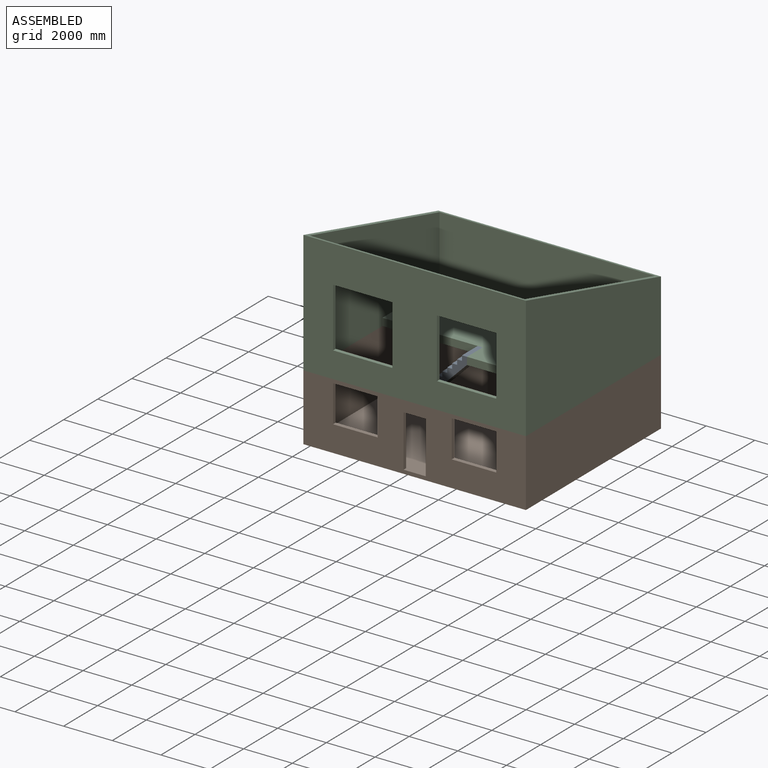
[diagram: assembled view]
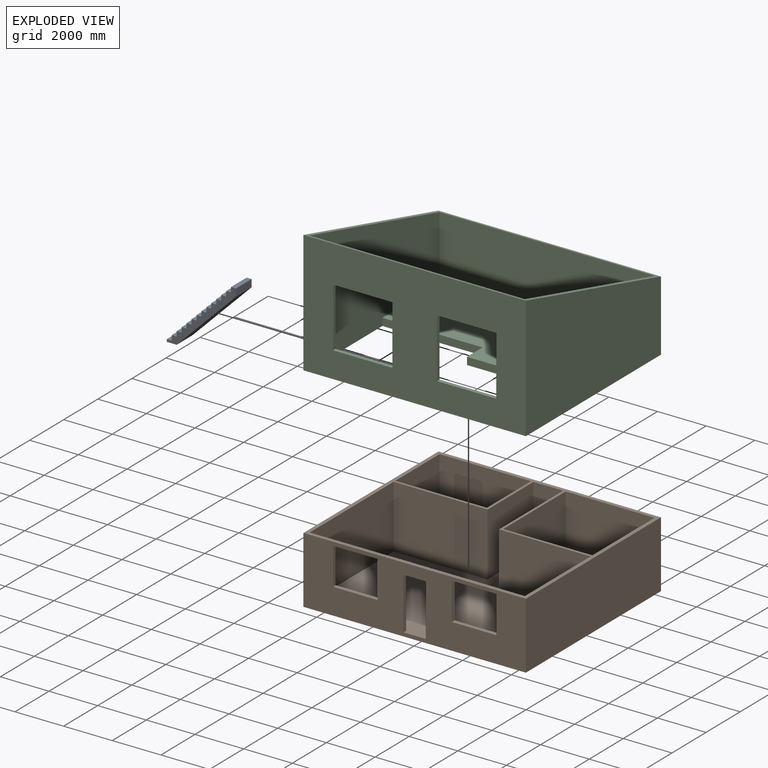
[diagram: exploded view]
GUIDED TOUR — MATED ASSEMBLY (Onshape document f6893333945d470dd2489408, AutoMate assembly f6893333945d470dd2489408_a23b43f76782dbe7404602a0_ac86c49a605708543306e3dc_default)

This assembly has 3 components, labeled P0..P2 below (a component is one placed occurrence of a part; the same part can appear more than once), held together by 2 mates. A mate is a constraint between two components; its type names the relative motion it leaves free:
  FASTENED — locks the two components together rigidly (no relative motion).
Axis/direction vectors are unit vectors and 'through' points are millimeter coordinates, both in the assembly's world frame.

MATES
  1. FASTENED "Fastened 2": P2 <-> P1, direction (0.000, 0.000, -1.000) through (-4572.00, -3962.40, 2743.20) mm
  2. FASTENED "Fastened 1": P0 <-> P2, direction (1.000, 0.000, 0.000) through (-304.80, 0.00, 3048.00) mm

ASSEMBLY ORDER
  1. P2 — the base component [order verified]
  2. P0 [order verified]
  3. P1 [order verified]
Order-tag legend:
  [order verified] — this step's position reverses a verified removal order: the component was checked to insert without passing through the ones already placed.

Of the 3 components, 3 carry the full construction recipe — the FeatureScript program that regenerates the part's solid from scratch; the rest are supplied as boundary geometry only.
Each toured component is shown spotlighted twice — in the assembled view, then in the exploded view, where a leader line traces a displaced component back to its assembled socket (saturated green if recipe-attached, orange if geometry-only; every other component desaturated gray) — followed by its recipe or geometry summary and the mates that hold it.
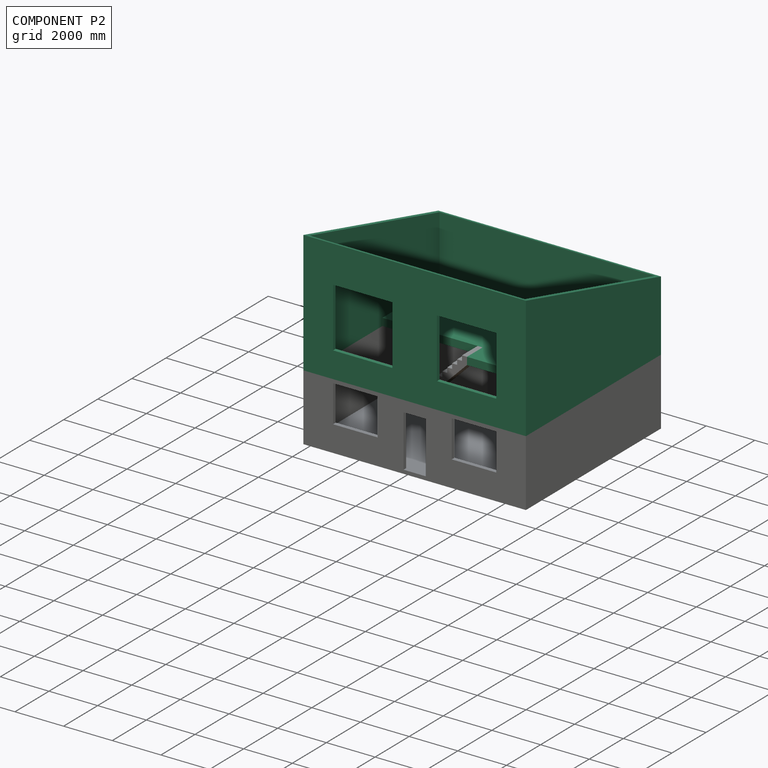
[diagram: component P2 — assembled]
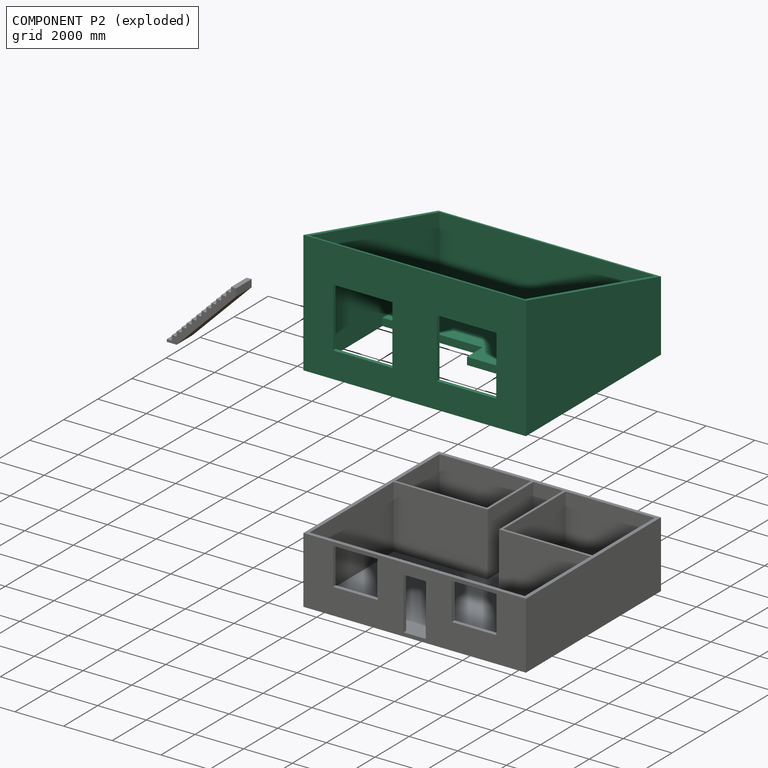
[diagram: component P2 — exploded]
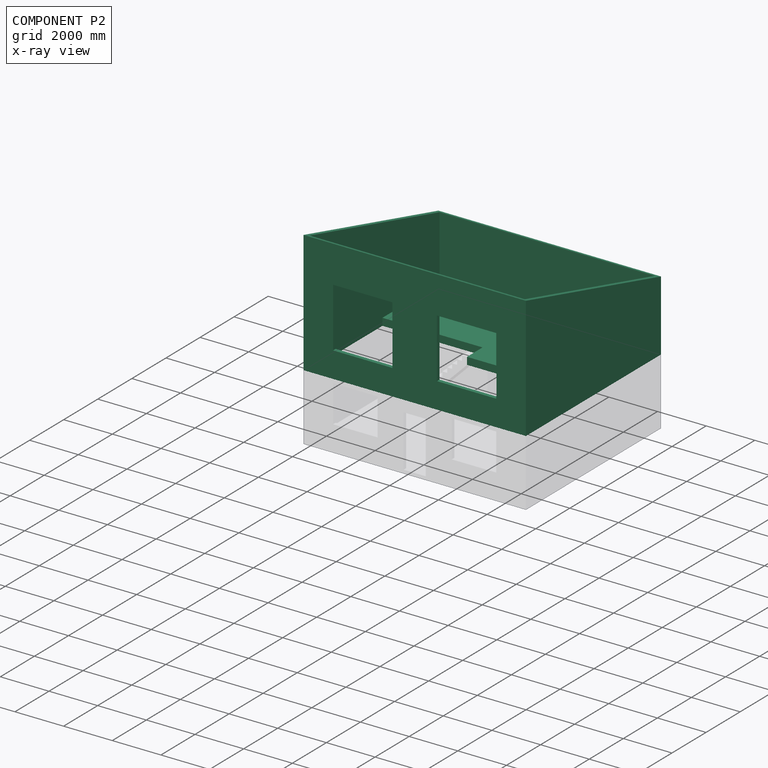
[diagram: component P2 — x-ray view]
COMPONENT P2 — recipe-attached (CADFS 00967645, mesh-verified: the recipe's output STEP matches this component's geometry to below the mesh-comparison resolution (tessellation chordal tolerance ~19.7 mm)).
Held by: FASTENED mate "Fastened 2" to P1; FASTENED mate "Fastened 1" to P0.
Construction recipe (FeatureScript — the CAD program that rebuilds this solid; sketch coordinates are in the units given by the * unit suffixes, e.g. mm):

FeatureScript 1511;
import(path : "onshape/std/geometry.fs", version : "1511.0");
import(path : "onshape/std/common.fs", version : "1511.0");
const mm = millimeter;
const VERTEX = EntityType.VERTEX;
const EDGE = EntityType.EDGE;
const FACE = EntityType.FACE;
const BODY = EntityType.BODY;
function v(x, y){return vector(x, y);}
function OD(order){return orderDisambiguation(order);}
function OSD(set){return originalSetDisambiguation(set);}
function TD(topology){return topologyDisambiguation(topology);}
function TDD(query){return trueDependencyDisambiguation(query);}
function sQuery(a, b, c) {return sketchEntityQuery(a, b, c);}

annotation { "Feature Type Name" : "Feature", "Feature Type Description" : "" }
export const myFeature = defineFeature(function(context is Context, id is Id, definition is map)
    precondition{}
    {
        {
            var Q0;
            Q0=qCreatedBy(makeId("Top.planeOp"),FACE);
            var sketch = newSketch(context, id + "F0", { "sketchPlane" : qUnion([Q0])});
            skLineSegment(sketch, "E0.bottom", {"start": v(-4572, 3962.4) * mm, "end": v(4572, 3962.4) * mm});
            skLineSegment(sketch, "E0.top", {"start": v(-4572, -3962.4) * mm, "end": v(4572, -3962.4) * mm});
            skLineSegment(sketch, "E0.left", {"start": v(-4572, 3962.4) * mm, "end": v(-4572, -3962.4) * mm});
            skLineSegment(sketch, "E0.right", {"start": v(4572, 3962.4) * mm, "end": v(4572, -3962.4) * mm});
            skPoint(sketch, "E0.middle", {"position": v(0, 0) * mm});
            skSolve(sketch);
        }
        {
            var Q0;
            Q0=makeQuery(id+"F0.imprint","IMPRINT",FACE,{"disambiguationData":[TD([[makeQuery(id+"F0.imprint","IMPRINT",EDGE,{"derivedFrom":sQuery(id+"F0.wireOp",EDGE,"E0.bottom")}),-1.0]])]});
            extrude(context, id + "F1", {"entities" : qUnion([Q0]), "depth" : 7620 * mm, "offsetDistance" : 30.48 * mm});
        }
        {
            var Q0;
            Q0=makeQuery(id+"F1.opExtrude","SWEPT_FACE",FACE,{"disambiguationData":[OSD([sQuery(id+"F0.wireOp",EDGE,"E0.right")])]});
            var sketch = newSketch(context, id + "F2", { "sketchPlane" : qUnion([Q0])});
            skLineSegment(sketch, "E1", {"start": v(-3962.4, 7620) * mm, "end": v(3962.4, 5496.56) * mm});
            skLineSegment(sketch, "E2", {"start": v(3962.4, 5496.56) * mm, "end": v(3962.4, 7620) * mm});
            skLineSegment(sketch, "E3", {"start": v(3962.4, 7620) * mm, "end": v(-3962.4, 7620) * mm});
            skSolve(sketch);
        }
        {
            var Q0;
            Q0=qSketchRegion(id+"F2",true);
            extrude(context, id + "F3", {"entities" : qUnion([Q0]), "operationType" : NewBodyOperationType.REMOVE, "endBound" : BoundingType.THROUGH_ALL, "oppositeDirection" : true, "depth" : 30.48 * mm, "offsetDistance" : 30.48 * mm});
        }
        {
            var Q0;
            Q0=makeQuery(id+"F3.boolean.opBoolean","COPY",FACE,{"derivedFrom":makeQuery(id+"F3.opExtrude","SWEPT_FACE",FACE,{"disambiguationData":[OSD([sQuery(id+"F2.wireOp",EDGE,"E1")])]})});
            shell(context, id + "F4", {"entities" : qUnion([Q0]), "thickness" : 152.4 * mm});
        }
        {
            var Q0;
            Q0=makeQuery(id+"F1.opExtrude","SWEPT_FACE",FACE,{"disambiguationData":[OSD([sQuery(id+"F0.wireOp",EDGE,"E0.top")])]});
            var sketch = newSketch(context, id + "F5", { "sketchPlane" : qUnion([Q0])});
            skLineSegment(sketch, "E4.bottom", {"start": v(457.2, 2286) * mm, "end": v(-457.2, 2286) * mm});
            skLineSegment(sketch, "E4.top", {"start": v(457.2, 152.4) * mm, "end": v(-457.2, 152.4) * mm});
            skLineSegment(sketch, "E4.left", {"start": v(457.2, 2286) * mm, "end": v(457.2, 152.4) * mm});
            skLineSegment(sketch, "E4.right", {"start": v(-457.2, 2286) * mm, "end": v(-457.2, 152.4) * mm});
            skPoint(sketch, "E4.middle", {"position": v(0, 1219.2) * mm});
            skLineSegment(sketch, "E5.bottom", {"start": v(-3352.8, 3657.6) * mm, "end": v(-914.4, 3657.6) * mm});
            skLineSegment(sketch, "E5.top", {"start": v(-3352.8, 6096) * mm, "end": v(-914.4, 6096) * mm});
            skLineSegment(sketch, "E5.left", {"start": v(-3352.8, 3657.6) * mm, "end": v(-3352.8, 6096) * mm});
            skLineSegment(sketch, "E5.right", {"start": v(-914.4, 3657.6) * mm, "end": v(-914.4, 6096) * mm});
            skPoint(sketch, "E5.middle", {"position": v(-2133.6, 4876.8) * mm});
            skLineSegment(sketch, "E6.bottom", {"start": v(914.4, 3657.6) * mm, "end": v(3352.8, 3657.6) * mm});
            skLineSegment(sketch, "E6.top", {"start": v(914.4, 6096) * mm, "end": v(3352.8, 6096) * mm});
            skLineSegment(sketch, "E6.left", {"start": v(914.4, 3657.6) * mm, "end": v(914.4, 6096) * mm});
            skLineSegment(sketch, "E6.right", {"start": v(3352.8, 3657.6) * mm, "end": v(3352.8, 6096) * mm});
            skPoint(sketch, "E6.middle", {"position": v(2133.6, 4876.8) * mm});
            skLineSegment(sketch, "E7.bottom", {"start": v(-3352.8, 2438.4) * mm, "end": v(-1524, 2438.4) * mm});
            skLineSegment(sketch, "E7.top", {"start": v(-3352.8, 914.4) * mm, "end": v(-1524, 914.4) * mm});
            skLineSegment(sketch, "E7.left", {"start": v(-3352.8, 2438.4) * mm, "end": v(-3352.8, 914.4) * mm});
            skLineSegment(sketch, "E7.right", {"start": v(-1524, 2438.4) * mm, "end": v(-1524, 914.4) * mm});
            skPoint(sketch, "E7.middle", {"position": v(-2438.4, 1676.4) * mm});
            skLineSegment(sketch, "E8.bottom", {"start": v(1524, 2438.4) * mm, "end": v(3352.8, 2438.4) * mm});
            skLineSegment(sketch, "E8.top", {"start": v(1524, 914.4) * mm, "end": v(3352.8, 914.4) * mm});
            skLineSegment(sketch, "E8.left", {"start": v(1524, 2438.4) * mm, "end": v(1524, 914.4) * mm});
            skLineSegment(sketch, "E8.right", {"start": v(3352.8, 2438.4) * mm, "end": v(3352.8, 914.4) * mm});
            skPoint(sketch, "E8.middle", {"position": v(2438.4, 1676.4) * mm});
            skLineSegment(sketch, "E9", {"start": v(-3352.8, 914.4) * mm, "end": v(-4572, 914.4) * mm, "construction": true});
            skLineSegment(sketch, "E10", {"start": v(3352.8, 914.4) * mm, "end": v(4572, 914.4) * mm, "construction": true});
            skSolve(sketch);
        }
        {
            var Q0;
            Q0=qSketchRegion(id+"F5",true);
            extrude(context, id + "F6", {"entities" : qUnion([Q0]), "operationType" : NewBodyOperationType.REMOVE, "endBound" : BoundingType.UP_TO_NEXT, "oppositeDirection" : true, "depth" : 30.48 * mm, "offsetDistance" : 30.48 * mm});
        }
        {
            var Q0;
            Q0=makeQuery(id+"F6.boolean.opBoolean","MERGE",FACE,{"derivedFrom":[makeQuery(id+"F4.opShell","OFFSET_FACE",FACE,{"disambiguationData":[OSD([sQuery(id+"F0.wireOp",EDGE,"E0.bottom"),sQuery(id+"F0.wireOp",EDGE,"E0.top"),sQuery(id+"F0.wireOp",EDGE,"E0.left"),sQuery(id+"F0.wireOp",EDGE,"E0.right")])]})],"fromTools":[makeQuery(id+"F6.opExtrude","SWEPT_FACE",FACE,{"disambiguationData":[OSD([sQuery(id+"F5.wireOp",EDGE,"E4.top")])]})]});
            cPlane(context, id + "F7", {"entities" : qUnion([Q0]), "cplaneType" : CPlaneType.OFFSET, "offset" : 2438.4 * mm, "width" : 152.4 * mm, "height" : 152.4 * mm});
        }
        {
            var Q0;
            Q0=qCreatedBy(id+"F7.planeOp",FACE);
            var sketch = newSketch(context, id + "F8", { "sketchPlane" : qUnion([Q0])});
            skLineSegment(sketch, "E11.bottom", {"start": v(-4419.6, 3810) * mm, "end": v(4419.6, 3810) * mm});
            skLineSegment(sketch, "E11.top", {"start": v(-304.8, -457.2) * mm, "end": v(4419.6, -457.2) * mm});
            skLineSegment(sketch, "E11.left", {"start": v(-4419.6, 3810) * mm, "end": v(-4419.6, 457.2) * mm});
            skLineSegment(sketch, "E11.right", {"start": v(4419.6, 3810) * mm, "end": v(4419.6, -457.2) * mm});
            skLineSegment(sketch, "E12", {"start": v(-4419.6, 457.2) * mm, "end": v(-304.8, 457.2) * mm});
            skLineSegment(sketch, "E13", {"start": v(-304.8, 457.2) * mm, "end": v(-304.8, -457.2) * mm});
            skSolve(sketch);
        }
        {
            var Q0;
            Q0=qSketchRegion(id+"F8",true);
            extrude(context, id + "F9", {"entities" : qUnion([Q0]), "operationType" : NewBodyOperationType.ADD, "depth" : 304.8 * mm, "offsetDistance" : 30.48 * mm});
        }
        {
            var Q0;
            Q0=makeQuery(id+"F1.opExtrude","SWEPT_FACE",FACE,{"disambiguationData":[OSD([sQuery(id+"F0.wireOp",EDGE,"E0.left")])]});
            var sketch = newSketch(context, id + "F10", { "sketchPlane" : qUnion([Q0])});
            skLineSegment(sketch, "E14.bottom", {"start": v(-3962.4, 0) * mm, "end": v(3962.4, 0) * mm});
            skLineSegment(sketch, "E14.top", {"start": v(-3962.4, 2590.8) * mm, "end": v(3962.4, 2590.8) * mm});
            skLineSegment(sketch, "E14.left", {"start": v(-3962.4, 0) * mm, "end": v(-3962.4, 2590.8) * mm});
            skLineSegment(sketch, "E14.right", {"start": v(3962.4, 0) * mm, "end": v(3962.4, 2590.8) * mm});
            skSolve(sketch);
        }
        {
            var Q0;
            Q0 = qSketchRegion(id + "F10", true);
            extrude(context, id + "F11", {"entities" : qUnion([Q0]), "operationType" : NewBodyOperationType.REMOVE, "endBound" : BoundingType.THROUGH_ALL, "oppositeDirection" : true, "depth" : 30.48 * mm, "offsetDistance" : 30.48 * mm});
        }
    });
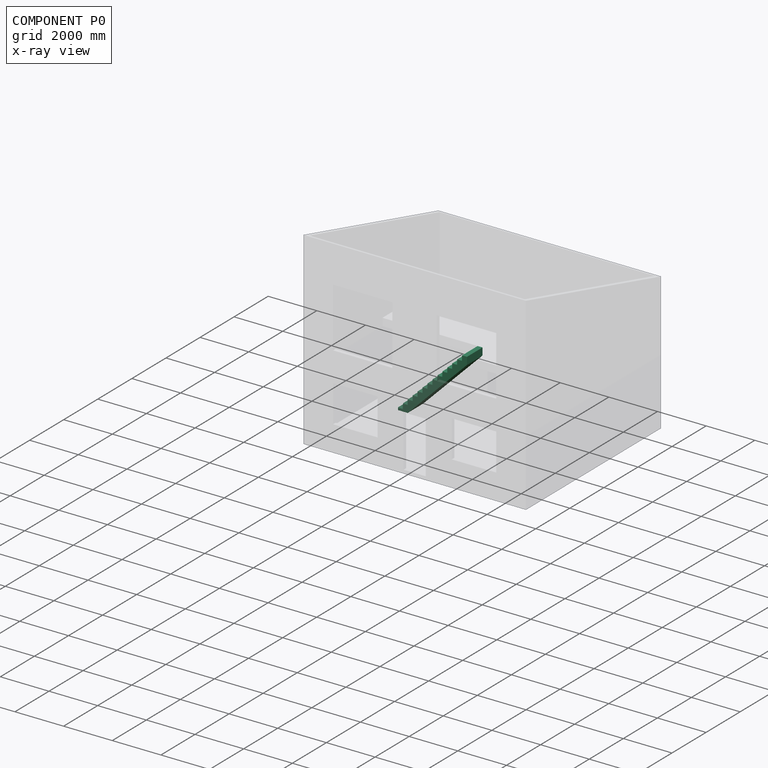
[diagram: component P0 — x-ray view]
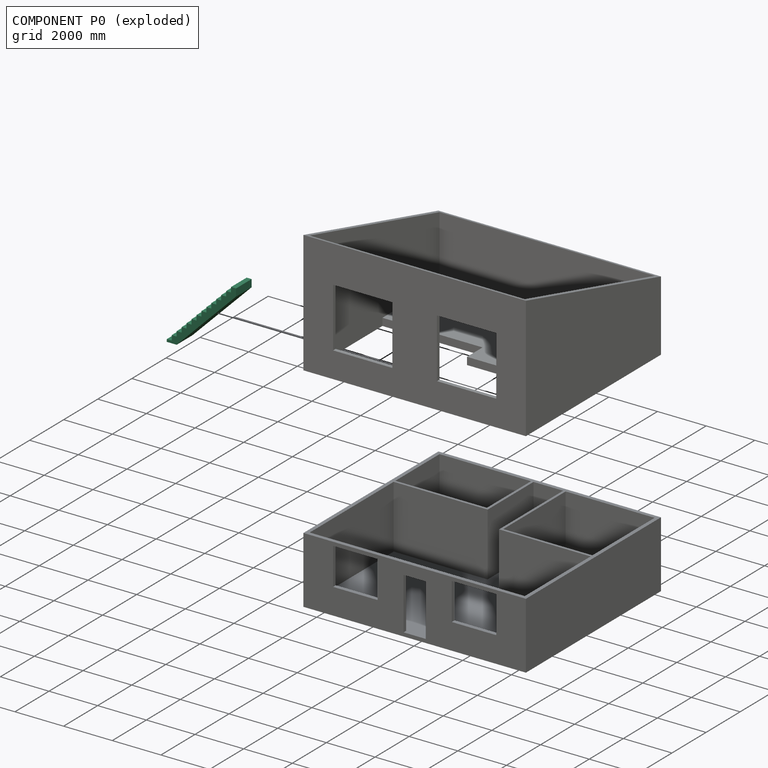
[diagram: component P0 — exploded]
COMPONENT P0 — recipe-attached (CADFS 00967647, mesh-verified: the recipe's output STEP matches this component's geometry to below the mesh-comparison resolution (tessellation chordal tolerance ~6.08 mm)).
Held by: FASTENED mate "Fastened 1" to P2.
Construction recipe (FeatureScript — the CAD program that rebuilds this solid; sketch coordinates are in the units given by the * unit suffixes, e.g. mm):

FeatureScript 1511;
import(path : "onshape/std/geometry.fs", version : "1511.0");
import(path : "onshape/std/common.fs", version : "1511.0");
const mm = millimeter;
const VERTEX = EntityType.VERTEX;
const EDGE = EntityType.EDGE;
const FACE = EntityType.FACE;
const BODY = EntityType.BODY;
function v(x, y){return vector(x, y);}
function OD(order){return orderDisambiguation(order);}
function OSD(set){return originalSetDisambiguation(set);}
function TD(topology){return topologyDisambiguation(topology);}
function TDD(query){return trueDependencyDisambiguation(query);}
function sQuery(a, b, c) {return sketchEntityQuery(a, b, c);}

annotation { "Feature Type Name" : "Feature", "Feature Type Description" : "" }
export const myFeature = defineFeature(function(context is Context, id is Id, definition is map)
    precondition{}
    {
        {
            var Q0;
            Q0=qCreatedBy(makeId("Front.planeOp"),FACE);
            var sketch = newSketch(context, id + "F0", { "sketchPlane" : qUnion([Q0])});
            skLineSegment(sketch, "E0", {"start": v(0, 0) * mm, "end": v(203.2, 0) * mm});
            skLineSegment(sketch, "E1", {"start": v(203.2, 0) * mm, "end": v(203.2, -304.8) * mm});
            skLineSegment(sketch, "E2", {"start": v(203.2, -304.8) * mm, "end": v(-2235.2, -2743.2) * mm});
            skLineSegment(sketch, "E3", {"start": v(0, 0) * mm, "end": v(0, -203.2) * mm});
            skLineSegment(sketch, "E4", {"start": v(0, -203.2) * mm, "end": v(-203.2, -203.2) * mm});
            skLineSegment(sketch, "E5", {"start": v(-203.2, -203.2) * mm, "end": v(-203.2, -406.4) * mm});
            skLineSegment(sketch, "E6", {"start": v(-203.2, -406.4) * mm, "end": v(-406.4, -406.4) * mm});
            skLineSegment(sketch, "E7", {"start": v(-406.4, -406.4) * mm, "end": v(-406.4, -609.6) * mm});
            skLineSegment(sketch, "E8", {"start": v(-406.4, -609.6) * mm, "end": v(-609.6, -609.6) * mm});
            skLineSegment(sketch, "E9", {"start": v(-609.6, -609.6) * mm, "end": v(-609.6, -812.8) * mm});
            skLineSegment(sketch, "E10", {"start": v(-609.6, -812.8) * mm, "end": v(-812.8, -812.8) * mm});
            skLineSegment(sketch, "E11", {"start": v(-812.8, -812.8) * mm, "end": v(-812.8, -1016) * mm});
            skLineSegment(sketch, "E12", {"start": v(-812.8, -1016) * mm, "end": v(-1016, -1016) * mm});
            skLineSegment(sketch, "E13", {"start": v(-1016, -1016) * mm, "end": v(-1016, -1219.2) * mm});
            skLineSegment(sketch, "E14", {"start": v(-1016, -1219.2) * mm, "end": v(-1219.2, -1219.2) * mm});
            skLineSegment(sketch, "E15", {"start": v(-1219.2, -1219.2) * mm, "end": v(-1219.2, -1422.4) * mm});
            skLineSegment(sketch, "E16", {"start": v(-1219.2, -1422.4) * mm, "end": v(-1422.4, -1422.4) * mm});
            skLineSegment(sketch, "E17", {"start": v(-1422.4, -1422.4) * mm, "end": v(-1422.4, -1625.6) * mm});
            skLineSegment(sketch, "E18", {"start": v(-1422.4, -1625.6) * mm, "end": v(-1625.6, -1625.6) * mm});
            skLineSegment(sketch, "E19", {"start": v(-1625.6, -1625.6) * mm, "end": v(-1625.6, -1828.8) * mm});
            skLineSegment(sketch, "E20", {"start": v(-1625.6, -1828.8) * mm, "end": v(-1828.8, -1828.8) * mm});
            skLineSegment(sketch, "E21", {"start": v(-1828.8, -1828.8) * mm, "end": v(-1828.8, -2032) * mm});
            skLineSegment(sketch, "E22", {"start": v(-1828.8, -2032) * mm, "end": v(-2032, -2032) * mm});
            skLineSegment(sketch, "E23", {"start": v(-2032, -2032) * mm, "end": v(-2032, -2235.2) * mm});
            skLineSegment(sketch, "E24", {"start": v(-2032, -2235.2) * mm, "end": v(-2235.2, -2235.2) * mm});
            skLineSegment(sketch, "E25", {"start": v(-2235.2, -2235.2) * mm, "end": v(-2235.2, -2438.4) * mm});
            skLineSegment(sketch, "E26", {"start": v(-2235.2, -2438.4) * mm, "end": v(-2438.4, -2438.4) * mm});
            skLineSegment(sketch, "E27", {"start": v(-2438.4, -2438.4) * mm, "end": v(-2438.4, -2641.6) * mm});
            skLineSegment(sketch, "E28", {"start": v(-2438.4, -2641.6) * mm, "end": v(-2641.6, -2641.6) * mm});
            skLineSegment(sketch, "E29", {"start": v(-2641.6, -2641.6) * mm, "end": v(-2641.6, -2743.2) * mm});
            skLineSegment(sketch, "E30", {"start": v(-2235.2, -2743.2) * mm, "end": v(-2641.6, -2743.2) * mm});
            skSolve(sketch);
        }
        {
            var Q0;
            Q0 = qSketchRegion(id + "F0", true);
            extrude(context, id + "F1", {"entities" : qUnion([Q0]), "depth" : 914.4 * mm, "offsetDistance" : 30.48 * mm});
        }
    });
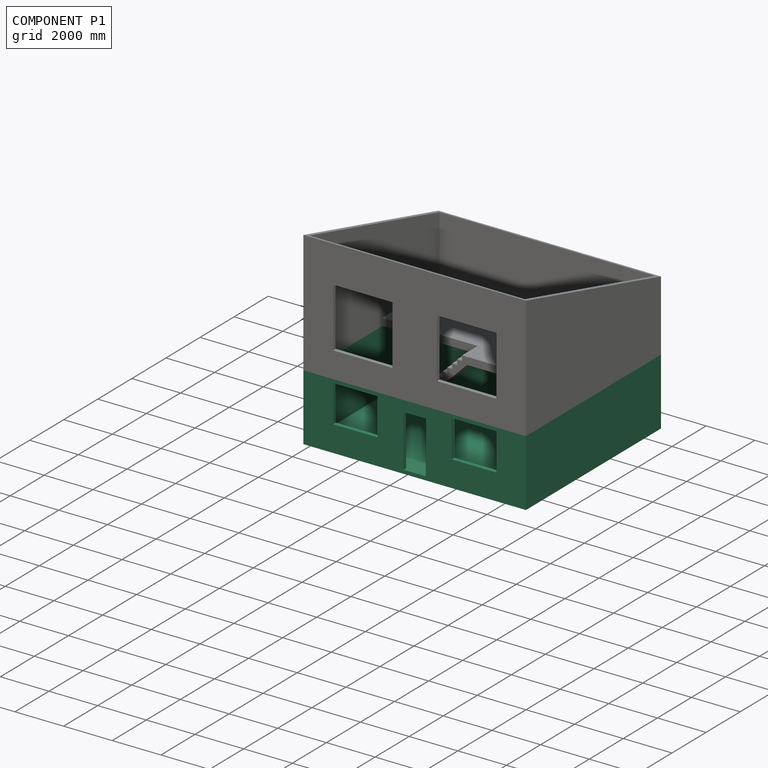
[diagram: component P1 — assembled]
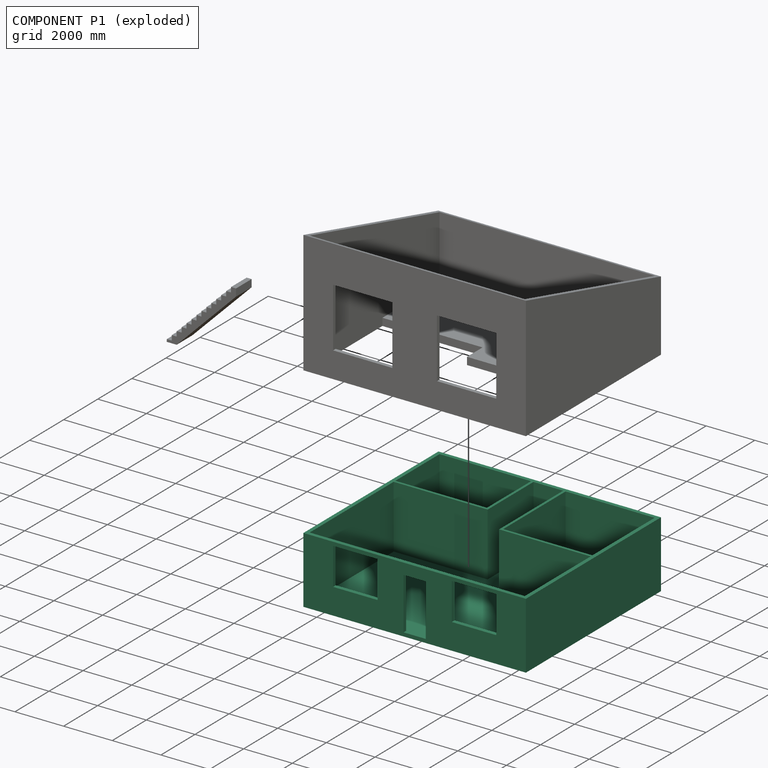
[diagram: component P1 — exploded]
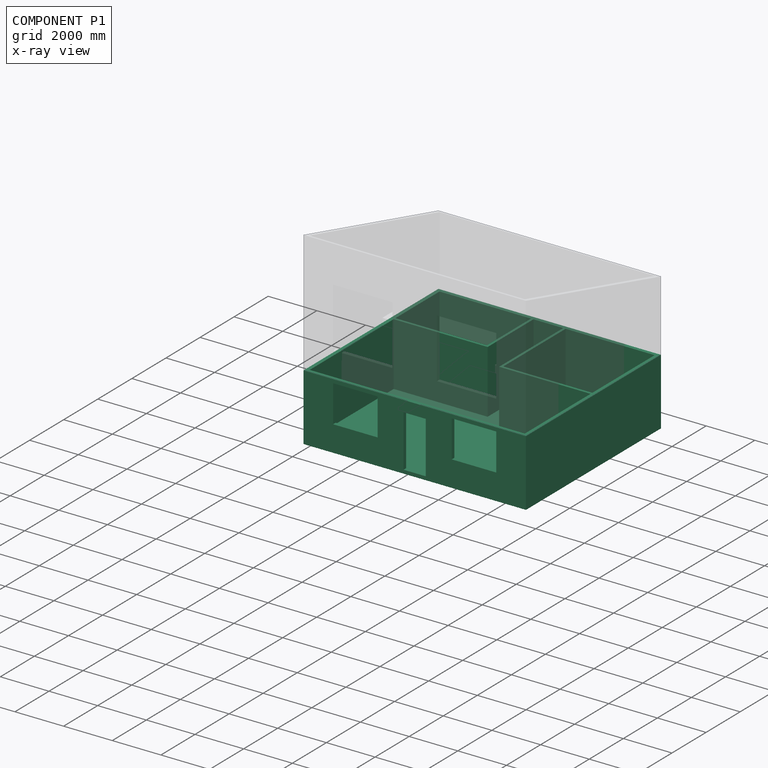
[diagram: component P1 — x-ray view]
COMPONENT P1 — recipe-attached (CADFS 00967644, mesh-verified: the recipe's output STEP matches this component's geometry to below the mesh-comparison resolution (tessellation chordal tolerance ~18.6 mm)).
Held by: FASTENED mate "Fastened 2" to P2.
Construction recipe (FeatureScript — the CAD program that rebuilds this solid; sketch coordinates are in the units given by the * unit suffixes, e.g. mm):

FeatureScript 1511;
import(path : "onshape/std/geometry.fs", version : "1511.0");
import(path : "onshape/std/common.fs", version : "1511.0");
const mm = millimeter;
const VERTEX = EntityType.VERTEX;
const EDGE = EntityType.EDGE;
const FACE = EntityType.FACE;
const BODY = EntityType.BODY;
function v(x, y){return vector(x, y);}
function OD(order){return orderDisambiguation(order);}
function OSD(set){return originalSetDisambiguation(set);}
function TD(topology){return topologyDisambiguation(topology);}
function TDD(query){return trueDependencyDisambiguation(query);}
function sQuery(a, b, c) {return sketchEntityQuery(a, b, c);}

annotation { "Feature Type Name" : "Feature", "Feature Type Description" : "" }
export const myFeature = defineFeature(function(context is Context, id is Id, definition is map)
    precondition{}
    {
        {
            var Q0;
            Q0=qCreatedBy(makeId("Top.planeOp"),FACE);
            var sketch = newSketch(context, id + "F0", { "sketchPlane" : qUnion([Q0])});
            skLineSegment(sketch, "E0.bottom", {"start": v(-4572, 3962.4) * mm, "end": v(4572, 3962.4) * mm});
            skLineSegment(sketch, "E0.top", {"start": v(-4572, -3962.4) * mm, "end": v(4572, -3962.4) * mm});
            skLineSegment(sketch, "E0.left", {"start": v(-4572, 3962.4) * mm, "end": v(-4572, -3962.4) * mm});
            skLineSegment(sketch, "E0.right", {"start": v(4572, 3962.4) * mm, "end": v(4572, -3962.4) * mm});
            skPoint(sketch, "E0.middle", {"position": v(0, 0) * mm});
            skSolve(sketch);
        }
        {
            var Q0;
            Q0=makeQuery(id+"F0.imprint","IMPRINT",FACE,{"disambiguationData":[TD([[makeQuery(id+"F0.imprint","IMPRINT",EDGE,{"derivedFrom":sQuery(id+"F0.wireOp",EDGE,"E0.bottom")}),-1.0]])]});
            extrude(context, id + "F1", {"entities" : qUnion([Q0]), "flatOperationType" : FlatOperationType.REMOVE, "depth" : 2743.2 * mm, "offsetDistance" : 30.48 * mm, "domain" : OperationDomain.MODEL});
        }
        {
            var Q0;
            Q0=makeQuery(id+"F1.opExtrude","CAP_FACE",FACE,{"disambiguationData":[OSD([sQuery(id+"F0.wireOp",EDGE,"E0.bottom"),sQuery(id+"F0.wireOp",EDGE,"E0.top"),sQuery(id+"F0.wireOp",EDGE,"E0.left"),sQuery(id+"F0.wireOp",EDGE,"E0.right")])],"isStart":false});
            shell(context, id + "F2", {"entities" : qUnion([Q0]), "thickness" : 152.4 * mm});
        }
        {
            var Q0;
            Q0=makeQuery(id+"F1.opExtrude","SWEPT_FACE",FACE,{"disambiguationData":[OSD([sQuery(id+"F0.wireOp",EDGE,"E0.top")])]});
            var sketch = newSketch(context, id + "F3", { "sketchPlane" : qUnion([Q0])});
            skLineSegment(sketch, "E1.bottom", {"start": v(457.2, 2286) * mm, "end": v(-457.2, 2286) * mm});
            skLineSegment(sketch, "E1.top", {"start": v(457.2, 152.4) * mm, "end": v(-457.2, 152.4) * mm});
            skLineSegment(sketch, "E1.left", {"start": v(457.2, 2286) * mm, "end": v(457.2, 152.4) * mm});
            skLineSegment(sketch, "E1.right", {"start": v(-457.2, 2286) * mm, "end": v(-457.2, 152.4) * mm});
            skPoint(sketch, "E1.middle", {"position": v(0, 1219.2) * mm});
            skLineSegment(sketch, "E2.bottom", {"start": v(-3352.8, 3657.6) * mm, "end": v(-914.4, 3657.6) * mm});
            skLineSegment(sketch, "E2.top", {"start": v(-3352.8, 6096) * mm, "end": v(-914.4, 6096) * mm});
            skLineSegment(sketch, "E2.left", {"start": v(-3352.8, 3657.6) * mm, "end": v(-3352.8, 6096) * mm});
            skLineSegment(sketch, "E2.right", {"start": v(-914.4, 3657.6) * mm, "end": v(-914.4, 6096) * mm});
            skPoint(sketch, "E2.middle", {"position": v(-2133.6, 4876.8) * mm});
            skLineSegment(sketch, "E3.bottom", {"start": v(914.4, 3657.6) * mm, "end": v(3352.8, 3657.6) * mm});
            skLineSegment(sketch, "E3.top", {"start": v(914.4, 6096) * mm, "end": v(3352.8, 6096) * mm});
            skLineSegment(sketch, "E3.left", {"start": v(914.4, 3657.6) * mm, "end": v(914.4, 6096) * mm});
            skLineSegment(sketch, "E3.right", {"start": v(3352.8, 3657.6) * mm, "end": v(3352.8, 6096) * mm});
            skPoint(sketch, "E3.middle", {"position": v(2133.6, 4876.8) * mm});
            skLineSegment(sketch, "E4.bottom", {"start": v(-3352.8, 2590.8) * mm, "end": v(-1524, 2590.8) * mm});
            skLineSegment(sketch, "E4.top", {"start": v(-3352.8, 1066.8) * mm, "end": v(-1524, 1066.8) * mm});
            skLineSegment(sketch, "E4.left", {"start": v(-3352.8, 2590.8) * mm, "end": v(-3352.8, 1066.8) * mm});
            skLineSegment(sketch, "E4.right", {"start": v(-1524, 2590.8) * mm, "end": v(-1524, 1066.8) * mm});
            skPoint(sketch, "E4.middle", {"position": v(-2438.4, 1828.8) * mm});
            skLineSegment(sketch, "E5.bottom", {"start": v(1524, 2590.8) * mm, "end": v(3352.8, 2590.8) * mm});
            skLineSegment(sketch, "E5.top", {"start": v(1524, 1066.8) * mm, "end": v(3352.8, 1066.8) * mm});
            skLineSegment(sketch, "E5.left", {"start": v(1524, 2590.8) * mm, "end": v(1524, 1066.8) * mm});
            skLineSegment(sketch, "E5.right", {"start": v(3352.8, 2590.8) * mm, "end": v(3352.8, 1066.8) * mm});
            skPoint(sketch, "E5.middle", {"position": v(2438.4, 1828.8) * mm});
            skLineSegment(sketch, "E6", {"start": v(-3352.8, 1066.8) * mm, "end": v(-4572, 1066.8) * mm, "construction": true});
            skLineSegment(sketch, "E7", {"start": v(3352.8, 1066.8) * mm, "end": v(4572, 1066.8) * mm, "construction": true});
            skSolve(sketch);
        }
        {
            var Q0;
            Q0 = qSketchRegion(id + "F3", true);
            var Q1;
            Q1=makeQuery(id+"F2.opShell","OFFSET_FACE",FACE,{"disambiguationData":[OSD([sQuery(id+"F0.wireOp",EDGE,"E0.top")])]});
            extrude(context, id + "F4", {"entities" : qUnion([Q0]), "operationType" : NewBodyOperationType.REMOVE, "endBound" : BoundingType.UP_TO_SURFACE, "oppositeDirection" : true, "depth" : 30.48 * mm, "endBoundEntityFace" : qUnion([Q1]), "offsetDistance" : 30.48 * mm});
        }
        {
            var Q0;
            Q0=makeQuery(id+"F4.boolean.opBoolean","MERGE",FACE,{"derivedFrom":[makeQuery(id+"F2.opShell","OFFSET_FACE",FACE,{"disambiguationData":[OSD([sQuery(id+"F0.wireOp",EDGE,"E0.bottom"),sQuery(id+"F0.wireOp",EDGE,"E0.top"),sQuery(id+"F0.wireOp",EDGE,"E0.left"),sQuery(id+"F0.wireOp",EDGE,"E0.right")])]})],"fromTools":[makeQuery(id+"F4.opExtrude","SWEPT_FACE",FACE,{"disambiguationData":[OSD([sQuery(id+"F3.wireOp",EDGE,"E1.top")])]})]});
            var sketch = newSketch(context, id + "F5", { "sketchPlane" : qUnion([Q0])});
            skLineSegment(sketch, "E8", {"start": v(4419.6, 50.8) * mm, "end": v(660.4, 50.8) * mm});
            skLineSegment(sketch, "E9", {"start": v(660.4, 50.8) * mm, "end": v(660.4, 3810) * mm});
            skLineSegment(sketch, "E10", {"start": v(660.4, 3810) * mm, "end": v(762, 3810) * mm});
            skLineSegment(sketch, "E11", {"start": v(762, 3810) * mm, "end": v(762, 152.4) * mm});
            skLineSegment(sketch, "E12", {"start": v(762, 152.4) * mm, "end": v(4419.6, 152.4) * mm});
            skLineSegment(sketch, "E13", {"start": v(4419.6, 152.4) * mm, "end": v(4419.6, 50.8) * mm});
            skLineSegment(sketch, "E14", {"start": v(-558.8, 3810) * mm, "end": v(-558.8, 1117.6) * mm});
            skLineSegment(sketch, "E15", {"start": v(-558.8, 1117.6) * mm, "end": v(-4419.6, 1117.6) * mm});
            skLineSegment(sketch, "E16", {"start": v(-4419.6, 1117.6) * mm, "end": v(-4419.6, 1219.2) * mm});
            skLineSegment(sketch, "E17", {"start": v(-4419.6, 1219.2) * mm, "end": v(-660.4, 1219.2) * mm});
            skLineSegment(sketch, "E18", {"start": v(-660.4, 1219.2) * mm, "end": v(-660.4, 3810) * mm});
            skLineSegment(sketch, "E19", {"start": v(-660.4, 3810) * mm, "end": v(-558.8, 3810) * mm});
            skSolve(sketch);
        }
        {
            var Q0;
            Q0 = qSketchRegion(id + "F5", true);
            var Q1;
            Q1=makeQuery(id+"F1.opExtrude","CAP_FACE",FACE,{"disambiguationData":[OSD([sQuery(id+"F0.wireOp",EDGE,"E0.bottom"),sQuery(id+"F0.wireOp",EDGE,"E0.top"),sQuery(id+"F0.wireOp",EDGE,"E0.left"),sQuery(id+"F0.wireOp",EDGE,"E0.right")])],"isStart":false});
            extrude(context, id + "F6", {"entities" : qUnion([Q0]), "operationType" : NewBodyOperationType.ADD, "endBound" : BoundingType.UP_TO_SURFACE, "depth" : 30.48 * mm, "endBoundEntityFace" : qUnion([Q1]), "offsetDistance" : 30.48 * mm});
        }
    });
PROVENANCE & LICENSES
Assembly (occurrences, transforms, mates, per-part STEP geometry): AutoMate dataset, Zenodo record 7776208, CC0.
Construction recipes: CADFS (HuggingFace VladPyatov/CADFS, CC-BY-4.0, layered over the ABC dataset), FeatureScript reconstruction programs keyed by ABC model id.
Join: ABC meta listings map ABC model id -> Onshape documentId; within a shared document, parts are matched by geometric signature (bounding-box dims + volume at 0.1% relative tolerance, exact B-rep face/solid counts).
Verification: 3 of this assembly's 3 components carry a recipe attachment, and every attachment is mesh-verified: the CADFS STEP and the AutoMate member STEP were compared as meshes in their shared local frame (symmetric sampled-point-to-mesh distance); worst across the 3 attachments: below the mesh-comparison resolution (tessellation chordal tolerance ~19.7 mm) on a 13104 mm part.
Renders: orthographic iso camera (az 35 / el 25); the floor grid conveys scale (grid pitch printed in each image; no ruler). In the exploded view each component is displaced by its stored offset vector: the offsets alone carry the explosion direction (mate normal/axis signs are not orientation cues and do not encode it), and separation distances are assigned per mate-chain, not proportionally to assembly-order depth.
